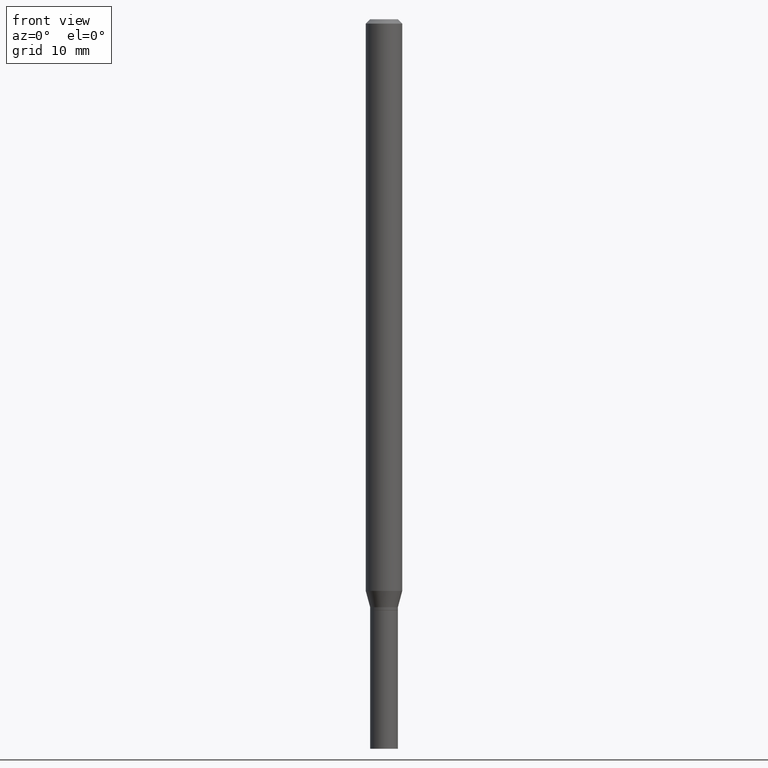
[diagram: clean part render]
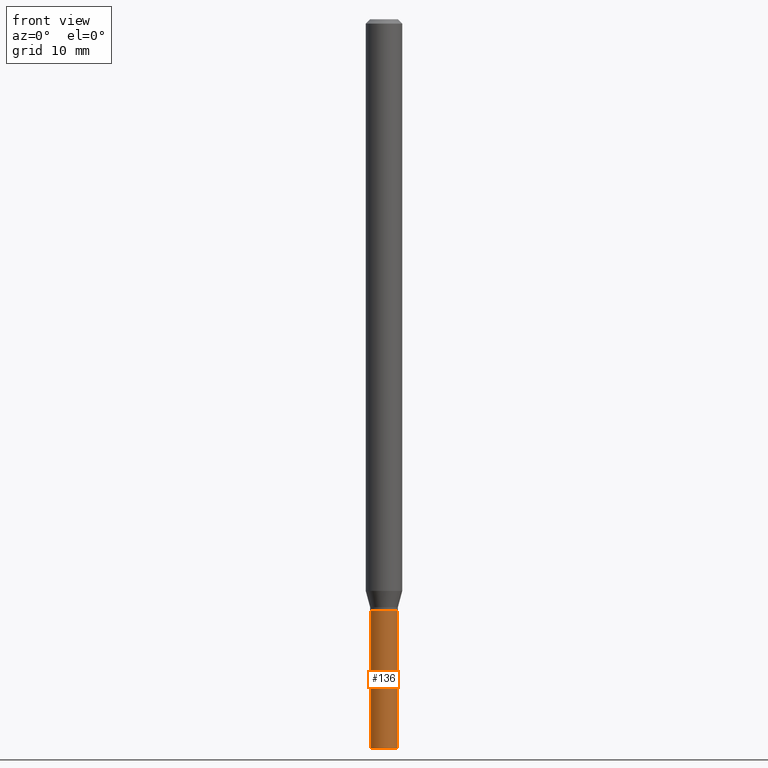
[diagram: same view with one face highlighted and labeled with its STEP entity id]
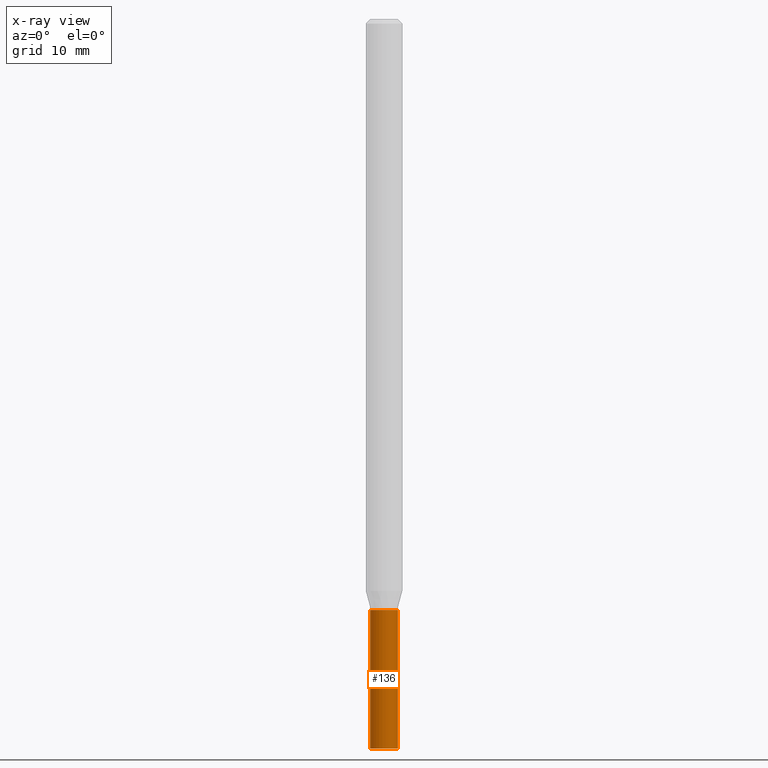
[diagram: x-ray of the same camera — body ghosted, the highlighted face saturated]
A machine part, front view. The second image highlights one B-rep face of the part: STEP entity #136.
The next image is the same camera in x-ray: the body ghosted, the highlighted face saturated — about 0% of this face is hidden behind the body in this view.
In plain terms, the highlighted cylindrical surface (edge-blend (fillet) strip) has radius 1.2065 mm, axis along (-0, 0, 1).
Its self-contained STEP definition (entity closure, byte-faithful):
#3 = AXIS2_PLACEMENT_3D ( 'NONE', #139, #91, #242 ) ;
#14 = DIRECTION ( 'NONE',  ( 1.000000000000000000, -6.982962677686261977E-15, 0.000000000000000000 ) ) ;
#25 = CARTESIAN_POINT ( 'NONE',  ( 0.04749999999999999362, -7.401940438347467010E-15, -2.024999999999999911 ) ) ;
#54 = LINE ( 'NONE', #388, #293 ) ;
#86 = DIRECTION ( 'NONE',  ( -2.445468806185136597E-29, 3.491481338843145583E-15, 1.000000000000000000 ) ) ;
#87 = AXIS2_PLACEMENT_3D ( 'NONE', #133, #205, #14 ) ;
#91 = DIRECTION ( 'NONE',  ( -2.445468806185136597E-29, 3.491481338843145583E-15, 1.000000000000000000 ) ) ;
#105 = FACE_OUTER_BOUND ( 'NONE', #359, .T. ) ;
#133 = CARTESIAN_POINT ( 'NONE',  ( 4.952074332524902057E-29, -7.070249711157369499E-15, -2.024999999999999911 ) ) ;
#136 = ADVANCED_FACE ( 'NONE', ( #105 ), #246, .T. ) ;
#139 = CARTESIAN_POINT ( 'NONE',  ( 0.000000000000000000, 0.000000000000000000, 0.000000000000000000 ) ) ;
#143 = EDGE_CURVE ( 'NONE', #309, #272, #212, .T. ) ;
#147 = ORIENTED_EDGE ( 'NONE', *, *, #143, .T. ) ;
#166 = CARTESIAN_POINT ( 'NONE',  ( -0.04749999999999999362, -7.561968729646570122E-15, -2.500000000000000000 ) ) ;
#172 = ORIENTED_EDGE ( 'NONE', *, *, #252, .F. ) ;
#185 = AXIS2_PLACEMENT_3D ( 'NONE', #201, #86, #346 ) ;
#192 = ORIENTED_EDGE ( 'NONE', *, *, #414, .F. ) ;
#201 = CARTESIAN_POINT ( 'NONE',  ( 6.113672015462842613E-29, -8.728703347107864943E-15, -2.500000000000000000 ) ) ;
#205 = DIRECTION ( 'NONE',  ( -2.445468806185136597E-29, 3.491481338843145583E-15, 1.000000000000000000 ) ) ;
#212 = LINE ( 'NONE', #316, #397 ) ;
#216 = CARTESIAN_POINT ( 'NONE',  ( 0.04749999999999999362, -9.060394074297963242E-15, -2.500000000000000000 ) ) ;
#220 = VERTEX_POINT ( 'NONE', #288 ) ;
#223 = CIRCLE ( 'NONE', #87, 0.04749999999999999362 ) ;
#242 = DIRECTION ( 'NONE',  ( 1.000000000000000000, -6.982962677686267499E-15, 4.876176775795935793E-29 ) ) ;
#246 = CYLINDRICAL_SURFACE ( 'NONE', #3, 0.04749999999999999362 ) ;
#252 = EDGE_CURVE ( 'NONE', #465, #220, #54, .T. ) ;
#272 = VERTEX_POINT ( 'NONE', #25 ) ;
#280 = DIRECTION ( 'NONE',  ( -2.445468806185136877E-29, 3.491481338843145188E-15, 1.000000000000000000 ) ) ;
#288 = CARTESIAN_POINT ( 'NONE',  ( -0.04749999999999999362, -7.561968729646570122E-15, -2.024999999999999911 ) ) ;
#293 = VECTOR ( 'NONE', #280, 39.37007874015748143 ) ;
#298 = CIRCLE ( 'NONE', #185, 0.04749999999999999362 ) ;
#309 = VERTEX_POINT ( 'NONE', #216 ) ;
#316 = CARTESIAN_POINT ( 'NONE',  ( 0.04749999999999999362, -3.316907271900976589E-16, 2.316183968503069081E-30 ) ) ;
#346 = DIRECTION ( 'NONE',  ( 1.000000000000000000, -6.982962677686283277E-15, 0.000000000000000000 ) ) ;
#357 = ORIENTED_EDGE ( 'NONE', *, *, #412, .T. ) ;
#359 = EDGE_LOOP ( 'NONE', ( #172, #357, #147, #192 ) ) ;
#386 = DIRECTION ( 'NONE',  ( -2.445468806185136877E-29, 3.491481338843145188E-15, 1.000000000000000000 ) ) ;
#388 = CARTESIAN_POINT ( 'NONE',  ( -0.04749999999999999362, 3.375077994860475429E-16, -2.336494167871079910E-30 ) ) ;
#397 = VECTOR ( 'NONE', #386, 39.37007874015748143 ) ;
#412 = EDGE_CURVE ( 'NONE', #465, #309, #298, .T. ) ;
#414 = EDGE_CURVE ( 'NONE', #220, #272, #223, .T. ) ;
#465 = VERTEX_POINT ( 'NONE', #166 ) ;